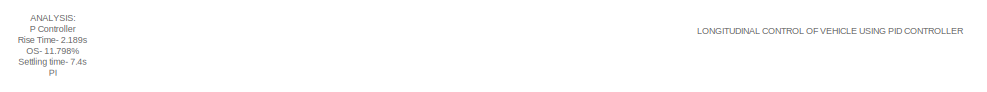
[diagram: root canvas - part 1/2, top left region]
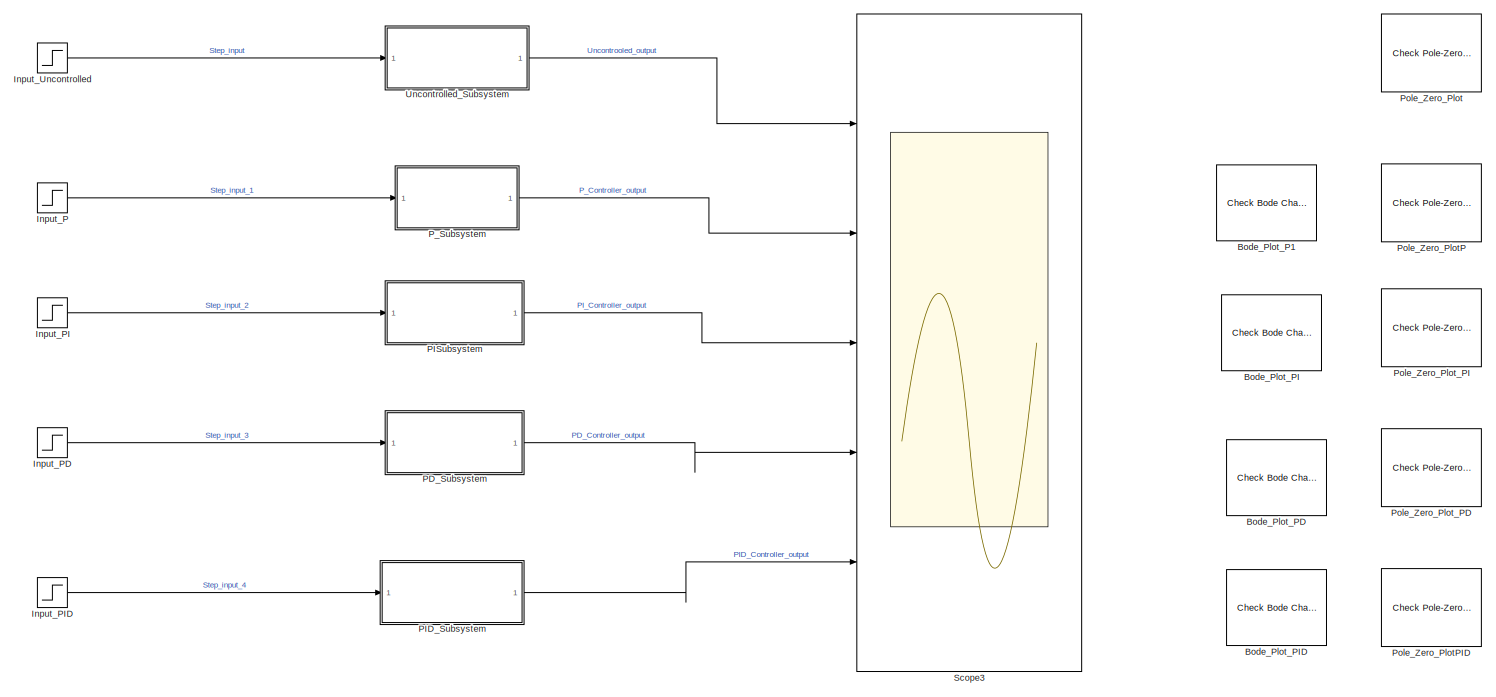
[diagram: root canvas - part 2/2, most of the canvas]
MODEL slx_a1fd6c067852
KIND model
CONFIG AbsTol = auto
CONFIG EnableMultiTasking = off
CONFIG FixedStep = auto
CONFIG MaxStep = auto
CONFIG MinStep = auto
CONFIG RelTol = 1e-3
CONFIG SampleTimeConstraint = Unconstrained
CONFIG SolverName = VariableStepAuto
CONFIG StartTime = 0.0
CONFIG StopTime = 100
BLOCK [Reference] Bode_Plot_P1  REF=slctrlblks/Model Verification/Check Bode 
Characteristics
  InstantiateOnLoad = on
  Ports = []
  SourceBlock = slctrlblks/Model Verification/Check Bode \nCharacteristics
  SourceProductBaseCode = SD
  SourceType = Checks_Bode
BLOCK [Reference] Bode_Plot_PD  REF=slctrlblks/Model Verification/Check Bode 
Characteristics
  InstantiateOnLoad = on
  Ports = []
  SourceBlock = slctrlblks/Model Verification/Check Bode \nCharacteristics
  SourceProductBaseCode = SD
  SourceType = Checks_Bode
BLOCK [Reference] Bode_Plot_PI  REF=slctrlblks/Model Verification/Check Bode 
Characteristics
  InstantiateOnLoad = on
  Ports = []
  SourceBlock = slctrlblks/Model Verification/Check Bode \nCharacteristics
  SourceProductBaseCode = SD
  SourceType = Checks_Bode
BLOCK [Reference] Bode_Plot_PID  REF=slctrlblks/Model Verification/Check Bode 
Characteristics
  InstantiateOnLoad = on
  Ports = []
  SourceBlock = slctrlblks/Model Verification/Check Bode \nCharacteristics
  SourceProductBaseCode = SD
  SourceType = Checks_Bode
BLOCK [Step] Input_P
  After = 30
  SampleTime = 0
BLOCK [Step] Input_PD
  After = 30
  SampleTime = 0
BLOCK [Step] Input_PI
  After = 30
  SampleTime = 0
BLOCK [Step] Input_PID
  After = 30
  SampleTime = 0
BLOCK [Step] Input_Uncontrolled
  After = 30
  SampleTime = 0
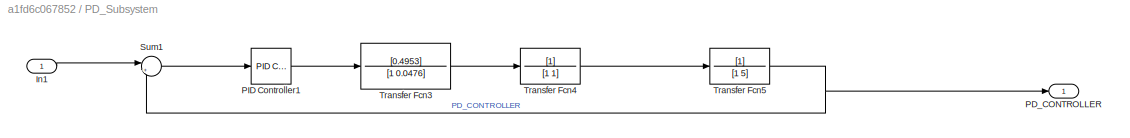
BLOCK [SubSystem] PD_Subsystem
  Ports = [1, 1]
  RequestExecContextInheritance = off
BLOCK [Inport] PD_Subsystem/In1
BLOCK [Outport] PD_Subsystem/PD_CONTROLLER
BLOCK [Reference] PD_Subsystem/PID Controller1  REF=pid_lib/PID Controller
  Ports = [1, 1]
  SourceBlock = pid_lib/PID Controller
  SourceProductBaseCode = SL
  SourceType = PID 1dof
BLOCK [Sum] PD_Subsystem/Sum1
  Inputs = |+-
  Ports = [2, 1]
BLOCK [TransferFcn] PD_Subsystem/Transfer Fcn3
  Denominator = [1 0.0476]
  Numerator = [0.4953]
BLOCK [TransferFcn] PD_Subsystem/Transfer Fcn4
  Denominator = [1 1]
BLOCK [TransferFcn] PD_Subsystem/Transfer Fcn5
  Denominator = [1 5]
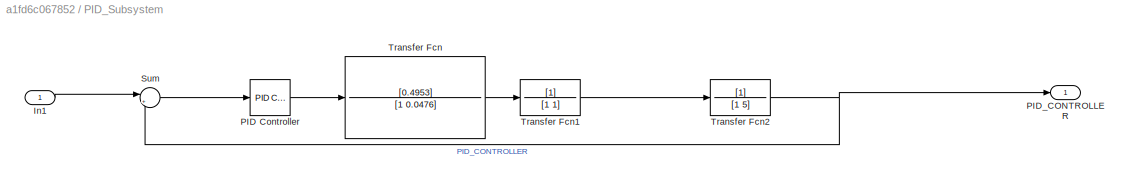
BLOCK [SubSystem] PID_Subsystem
  Ports = [1, 1]
  RequestExecContextInheritance = off
BLOCK [Inport] PID_Subsystem/In1
BLOCK [Reference] PID_Subsystem/PID Controller  REF=pid_lib/PID Controller
  Ports = [1, 1]
  SourceBlock = pid_lib/PID Controller
  SourceProductBaseCode = SL
  SourceType = PID 1dof
BLOCK [Outport] PID_Subsystem/PID_CONTROLLER
BLOCK [Sum] PID_Subsystem/Sum
  Inputs = |+-
  Ports = [2, 1]
BLOCK [TransferFcn] PID_Subsystem/Transfer Fcn
  Denominator = [1 0.0476]
  Numerator = [0.4953]
BLOCK [TransferFcn] PID_Subsystem/Transfer Fcn1
  Denominator = [1 1]
BLOCK [TransferFcn] PID_Subsystem/Transfer Fcn2
  Denominator = [1 5]
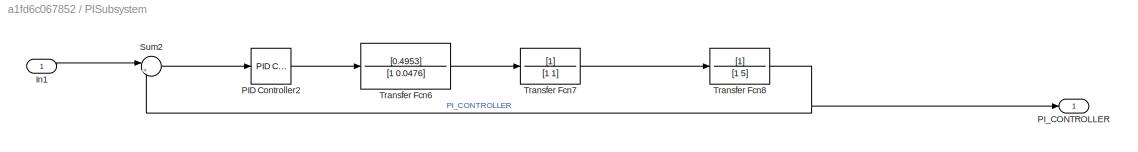
BLOCK [SubSystem] PISubsystem
  Ports = [1, 1]
  RequestExecContextInheritance = off
BLOCK [Inport] PISubsystem/In1
BLOCK [Reference] PISubsystem/PID Controller2  REF=pid_lib/PID Controller
  Ports = [1, 1]
  SourceBlock = pid_lib/PID Controller
  SourceProductBaseCode = SL
  SourceType = PID 1dof
BLOCK [Outport] PISubsystem/PI_CONTROLLER
BLOCK [Sum] PISubsystem/Sum2
  Inputs = |+-
  Ports = [2, 1]
BLOCK [TransferFcn] PISubsystem/Transfer Fcn6
  Denominator = [1 0.0476]
  Numerator = [0.4953]
BLOCK [TransferFcn] PISubsystem/Transfer Fcn7
  Denominator = [1 1]
BLOCK [TransferFcn] PISubsystem/Transfer Fcn8
  Denominator = [1 5]
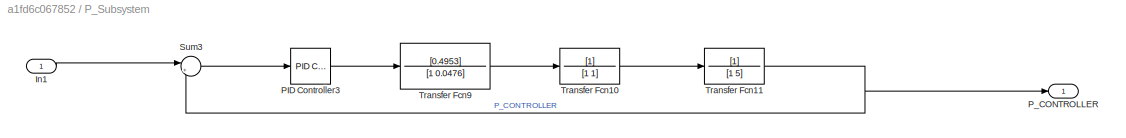
BLOCK [SubSystem] P_Subsystem
  Ports = [1, 1]
  RequestExecContextInheritance = off
BLOCK [Inport] P_Subsystem/In1
BLOCK [Reference] P_Subsystem/PID Controller3  REF=pid_lib/PID Controller
  Ports = [1, 1]
  SourceBlock = pid_lib/PID Controller
  SourceProductBaseCode = SL
  SourceType = PID 1dof
BLOCK [Outport] P_Subsystem/P_CONTROLLER
BLOCK [Sum] P_Subsystem/Sum3
  Inputs = |+-
  Ports = [2, 1]
BLOCK [TransferFcn] P_Subsystem/Transfer Fcn10
  Denominator = [1 1]
BLOCK [TransferFcn] P_Subsystem/Transfer Fcn11
  Denominator = [1 5]
BLOCK [TransferFcn] P_Subsystem/Transfer Fcn9
  Denominator = [1 0.0476]
  Numerator = [0.4953]
BLOCK [Reference] Pole_Zero_Plot  REF=slctrlblks/Model Verification/Check Pole-Zero
Characteristics
  InstantiateOnLoad = on
  Ports = []
  SourceBlock = slctrlblks/Model Verification/Check Pole-Zero\nCharacteristics
  SourceProductBaseCode = SD
  SourceType = Checks_PZMap
BLOCK [Reference] Pole_Zero_PlotP  REF=slctrlblks/Model Verification/Check Pole-Zero
Characteristics
  InstantiateOnLoad = on
  Ports = []
  SourceBlock = slctrlblks/Model Verification/Check Pole-Zero\nCharacteristics
  SourceProductBaseCode = SD
  SourceType = Checks_PZMap
BLOCK [Reference] Pole_Zero_PlotPID  REF=slctrlblks/Model Verification/Check Pole-Zero
Characteristics
  InstantiateOnLoad = on
  Ports = []
  SourceBlock = slctrlblks/Model Verification/Check Pole-Zero\nCharacteristics
  SourceProductBaseCode = SD
  SourceType = Checks_PZMap
BLOCK [Reference] Pole_Zero_Plot_PD  REF=slctrlblks/Model Verification/Check Pole-Zero
Characteristics
  InstantiateOnLoad = on
  Ports = []
  SourceBlock = slctrlblks/Model Verification/Check Pole-Zero\nCharacteristics
  SourceProductBaseCode = SD
  SourceType = Checks_PZMap
BLOCK [Reference] Pole_Zero_Plot_PI  REF=slctrlblks/Model Verification/Check Pole-Zero
Characteristics
  InstantiateOnLoad = on
  Ports = []
  SourceBlock = slctrlblks/Model Verification/Check Pole-Zero\nCharacteristics
  SourceProductBaseCode = SD
  SourceType = Checks_PZMap
BLOCK [Scope] Scope3
  Floating = off
  NumInputPorts = 5
  Ports = [5]
  ScopeSpecificationString = Simulink.scopes.TimeScopeBlockCfg('CurrentConfiguration', extmgr.ConfigurationSet(extmgr.Configuration('Core','General UI',true),extmgr.Configuration('Core','Source UI',true),extmgr.Configuration('Sources','WiredSimulink',true,'DataLoggingVariableName','ScopeData3'),extmgr.Configuration('Visuals','Time Domain',true,'SerializedDisplays',{struct('MinYLimReal','-7.72976','MaxYLimReal','69.56782','YLa...<+1949ch>
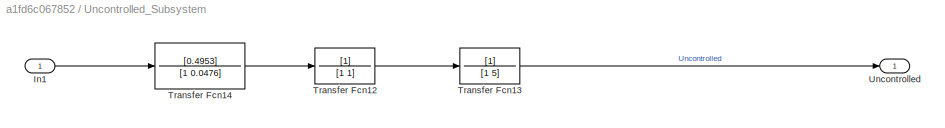
BLOCK [SubSystem] Uncontrolled_Subsystem
  Ports = [1, 1]
  RequestExecContextInheritance = off
BLOCK [Inport] Uncontrolled_Subsystem/In1
BLOCK [TransferFcn] Uncontrolled_Subsystem/Transfer Fcn12
  Denominator = [1 1]
BLOCK [TransferFcn] Uncontrolled_Subsystem/Transfer Fcn13
  Denominator = [1 5]
BLOCK [TransferFcn] Uncontrolled_Subsystem/Transfer Fcn14
  Denominator = [1 0.0476]
  Numerator = [0.4953]
BLOCK [Outport] Uncontrolled_Subsystem/Uncontrolled
ANNOTATION (root): ANALYSIS: P Controller Rise Time- 2.189s OS- 11.798% Settling time- 7.4s PI Rise Time- 16.417s OS- 13.068% Settling time-63.5s PD Rise Time- .462197s OS- 9.341% Settling time- 1.52s PID Rise Time- 17.780s OS- 6.989% Settling time- 66.2s Accuracy- PD controller is the accurate followed by P>PI>PID as setting for it is least among the others. Speed- PD>P>PI PID (As rise time is least for PD). Oversh...<+179ch>
ANNOTATION (root): LONGITUDINAL CONTROL OF VEHICLE USING PID CONTROLLER
LINE Input_P:1 -> P_Subsystem:1
LINE Input_PD:1 -> PD_Subsystem:1
LINE Input_PI:1 -> PISubsystem:1
LINE Input_PID:1 -> PID_Subsystem:1
LINE Input_Uncontrolled:1 -> Uncontrolled_Subsystem:1
LINE PD_Subsystem/In1:1 -> PD_Subsystem/Sum1:1
LINE PD_Subsystem/PID Controller1:1 -> PD_Subsystem/Transfer Fcn3:1
LINE PD_Subsystem/Sum1:1 -> PD_Subsystem/PID Controller1:1
LINE PD_Subsystem/Transfer Fcn3:1 -> PD_Subsystem/Transfer Fcn4:1
LINE PD_Subsystem/Transfer Fcn4:1 -> PD_Subsystem/Transfer Fcn5:1
NET PD_Subsystem/Transfer Fcn5:1 -> PD_Subsystem/PD_CONTROLLER:1, PD_Subsystem/Sum1:2
LINE PD_Subsystem:1 -> Scope3:4
LINE PID_Subsystem/In1:1 -> PID_Subsystem/Sum:1
LINE PID_Subsystem/PID Controller:1 -> PID_Subsystem/Transfer Fcn:1
LINE PID_Subsystem/Sum:1 -> PID_Subsystem/PID Controller:1
LINE PID_Subsystem/Transfer Fcn1:1 -> PID_Subsystem/Transfer Fcn2:1
NET PID_Subsystem/Transfer Fcn2:1 -> PID_Subsystem/PID_CONTROLLER:1, PID_Subsystem/Sum:2
LINE PID_Subsystem/Transfer Fcn:1 -> PID_Subsystem/Transfer Fcn1:1
LINE PID_Subsystem:1 -> Scope3:5
LINE PISubsystem/In1:1 -> PISubsystem/Sum2:1
LINE PISubsystem/PID Controller2:1 -> PISubsystem/Transfer Fcn6:1
LINE PISubsystem/Sum2:1 -> PISubsystem/PID Controller2:1
LINE PISubsystem/Transfer Fcn6:1 -> PISubsystem/Transfer Fcn7:1
LINE PISubsystem/Transfer Fcn7:1 -> PISubsystem/Transfer Fcn8:1
NET PISubsystem/Transfer Fcn8:1 -> PISubsystem/PI_CONTROLLER:1, PISubsystem/Sum2:2
LINE PISubsystem:1 -> Scope3:3
LINE P_Subsystem/In1:1 -> P_Subsystem/Sum3:1
LINE P_Subsystem/PID Controller3:1 -> P_Subsystem/Transfer Fcn9:1
LINE P_Subsystem/Sum3:1 -> P_Subsystem/PID Controller3:1
LINE P_Subsystem/Transfer Fcn10:1 -> P_Subsystem/Transfer Fcn11:1
NET P_Subsystem/Transfer Fcn11:1 -> P_Subsystem/P_CONTROLLER:1, P_Subsystem/Sum3:2
LINE P_Subsystem/Transfer Fcn9:1 -> P_Subsystem/Transfer Fcn10:1
LINE P_Subsystem:1 -> Scope3:2
LINE Uncontrolled_Subsystem/In1:1 -> Uncontrolled_Subsystem/Transfer Fcn14:1
LINE Uncontrolled_Subsystem/Transfer Fcn12:1 -> Uncontrolled_Subsystem/Transfer Fcn13:1
LINE Uncontrolled_Subsystem/Transfer Fcn13:1 -> Uncontrolled_Subsystem/Uncontrolled:1
LINE Uncontrolled_Subsystem/Transfer Fcn14:1 -> Uncontrolled_Subsystem/Transfer Fcn12:1
LINE Uncontrolled_Subsystem:1 -> Scope3:1
note: NET lines group one-source signal fan-out (src -> all destinations, sorted); 1:1 wires keep LINE
